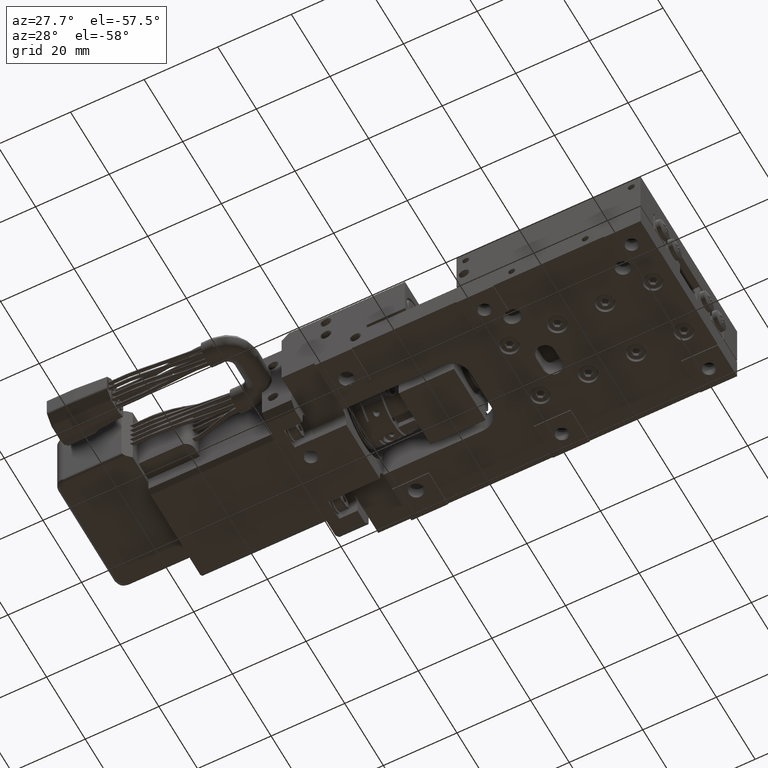
[diagram: clean part render]
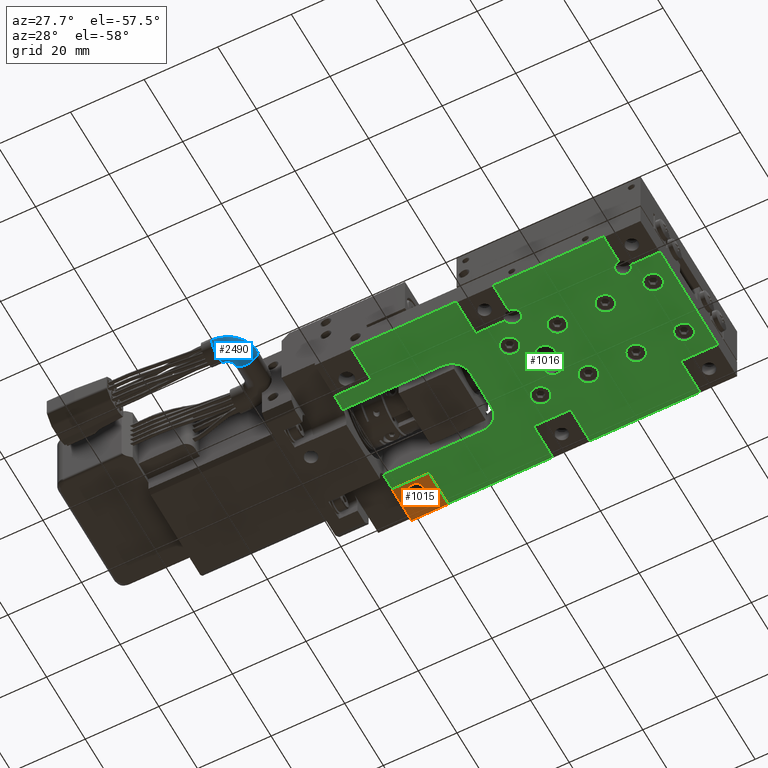
[diagram: same view with three faces highlighted in distinct colors, each labeled with its STEP entity id]
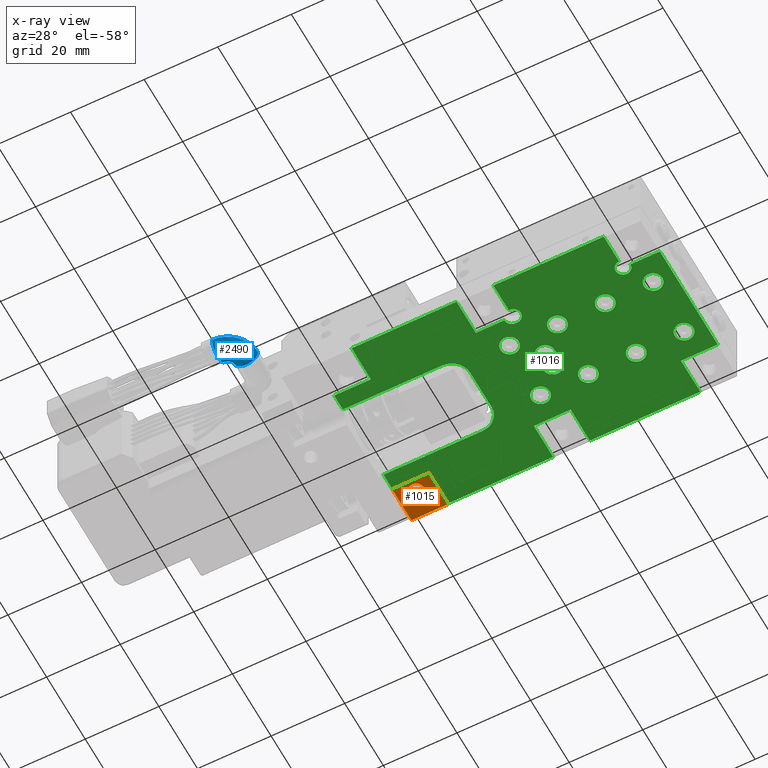
[diagram: x-ray of the same camera — body ghosted, the three highlighted faces saturated]
A machine part, auxiliary view with three faces highlighted in distinct colors.
The next image is the same camera in x-ray (body ghosted, the three faces saturated) — at least one of them is partly hidden behind the body in this view.
Their STEP definitions:

[orange] entity #1015 — the highlighted planar face has unit normal (0, 0, -1).
#1015=ADVANCED_FACE('',(#10198,#10199),#10197,.T.);
#10197=PLANE('',#30189);
#10198=FACE_OUTER_BOUND('',#30190,.T.);
#10199=FACE_BOUND('',#30191,.T.);
#30186=CARTESIAN_POINT('',(-5.25000000000E+001,1.40000000000E+001,-1.72084568817E-015));
#30187=DIRECTION('',(0.00000000000E+000,0.00000000000E+000,-1.00000000000E+000));
#30188=DIRECTION('',(-1.00000000000E+000,0.00000000000E+000,0.00000000000E+000));
#30189=AXIS2_PLACEMENT_3D('',#30186,#30187,#30188);
#30190=EDGE_LOOP('',(#44782,#44783,#44784,#44785));
#30191=EDGE_LOOP('',(#44786,#44787));
#44782=ORIENTED_EDGE('',*,*,#53882,.F.);
#44783=ORIENTED_EDGE('',*,*,#53807,.T.);
#44784=ORIENTED_EDGE('',*,*,#53866,.T.);
#44785=ORIENTED_EDGE('',*,*,#53883,.T.);
#44786=ORIENTED_EDGE('',*,*,#53884,.T.);
#44787=ORIENTED_EDGE('',*,*,#53885,.T.);
#53807=EDGE_CURVE('',#69928,#69921,#69929,.T.);
#53866=EDGE_CURVE('',#69921,#70327,#70334,.T.);
#53882=EDGE_CURVE('',#69928,#70443,#70444,.T.);
#53883=EDGE_CURVE('',#70327,#70443,#70450,.T.);
#53884=EDGE_CURVE('',#70456,#70457,#70458,.T.);
#53885=EDGE_CURVE('',#70457,#70456,#70464,.T.);
#69921=VERTEX_POINT('',#100091);
#69928=VERTEX_POINT('',#100095);
#69929=LINE('',#100096,#100097);
#70327=VERTEX_POINT('',#100330);
#70334=LINE('',#100334,#100335);
#70443=VERTEX_POINT('',#100405);
#70444=LINE('',#100406,#100407);
#70450=LINE('',#100409,#100410);
#70456=VERTEX_POINT('',#100412);
#70457=VERTEX_POINT('',#100413);
#70458=CIRCLE('',#100417,2.00000000000E+000);
#70464=CIRCLE('',#100421,2.00000000000E+000);
#100091=CARTESIAN_POINT('',(-6.35000000000E+001,2.50000000000E+001,-1.72084568817E-015));
#100095=CARTESIAN_POINT('',(-6.35000000000E+001,1.50000000000E+001,-3.63986965568E-012));
#100096=CARTESIAN_POINT('',(-6.35000000000E+001,1.50000000000E+001,-1.72084568817E-015));
#100097=VECTOR('',#100098,1.00000000000E+001);
#100098=DIRECTION('',(0.00000000000E+000,1.00000000000E+000,0.00000000000E+000));
#100330=CARTESIAN_POINT('',(-5.35000000000E+001,2.50000000000E+001,-3.63986965568E-012));
#100334=CARTESIAN_POINT('',(-6.35000000000E+001,2.50000000000E+001,-1.72084568817E-015));
#100335=VECTOR('',#100336,1.00000000000E+001);
#100336=DIRECTION('',(1.00000000000E+000,0.00000000000E+000,0.00000000000E+000));
#100405=CARTESIAN_POINT('',(-5.35000000000E+001,1.50000000000E+001,-3.63986965568E-012));
#100406=CARTESIAN_POINT('',(-6.35000000000E+001,1.50000000000E+001,-3.63986965568E-012));
#100407=VECTOR('',#100408,9.99999999998E+000);
#100408=DIRECTION('',(1.00000000000E+000,0.00000000000E+000,0.00000000000E+000));
#100409=CARTESIAN_POINT('',(-5.35000000000E+001,2.50000000000E+001,-3.63986965568E-012));
#100410=VECTOR('',#100411,9.99999999998E+000);
#100411=DIRECTION('',(0.00000000000E+000,-1.00000000000E+000,0.00000000000E+000));
#100412=CARTESIAN_POINT('',(-5.65000000000E+001,1.80000000000E+001,-5.18430645635E-011));
#100413=CARTESIAN_POINT('',(-6.05000000000E+001,1.80000000000E+001,-5.18430645635E-011));
#100414=CARTESIAN_POINT('',(-5.85000000000E+001,1.80000000000E+001,-5.18430645635E-011));
#100415=DIRECTION('',(0.00000000000E+000,0.00000000000E+000,1.00000000000E+000));
#100416=DIRECTION('',(1.00000000000E+000,-1.22464679915E-016,0.00000000000E+000));
#100417=AXIS2_PLACEMENT_3D('',#100414,#100415,#100416);
#100418=CARTESIAN_POINT('',(-5.85000000000E+001,1.80000000000E+001,-5.18430645635E-011));
#100419=DIRECTION('',(0.00000000000E+000,0.00000000000E+000,1.00000000000E+000));
#100420=DIRECTION('',(1.00000000000E+000,-1.22464679915E-016,0.00000000000E+000));
#100421=AXIS2_PLACEMENT_3D('',#100418,#100419,#100420);

[blue] entity #2490 — the highlighted face is a freeform B-spline surface patch.
#2490=ADVANCED_FACE('',(#25154),#25153,.T.);
#25153=( BOUNDED_SURFACE() B_SPLINE_SURFACE( 2,2,((#41200,#41201,#41202,#41203,#41204),(#41205,#41206,#41207,#41208,#41209),(#41210,#41211,#41212,#41213,#41214),(#41215,#41216,#41217,#41218,#41219),(#41220,#41221,#41222,#41223,#41224)), .UNSPECIFIED.,.F.,.F.,.F.) B_SPLINE_SURFACE_WITH_KNOTS((3,2,3),(3,2,3),(8.88178419700E-016,1.57079632679E+000,3.14159265359E+000),(2.35619449019E+000,3.14159265359E+000,3.92699081699E+000), .UNSPECIFIED. ) GEOMETRIC_REPRESENTATION_ITEM() RATIONAL_B_SPLINE_SURFACE(((8.53553390593E-001,8.53553390593E-001,1.00000000000E+000,8.53553390593E-001,8.53553390593E-001),(6.03553390593E-001,6.03553390593E-001,7.07106781187E-001,6.03553390593E-001,6.03553390593E-001),(8.53553390593E-001,8.53553390593E-001,1.00000000000E+000,8.53553390593E-001,8.53553390593E-001),(6.03553390593E-001,6.03553390593E-001,7.07106781187E-001,6.03553390593E-001,6.03553390593E-001),(8.53553390593E-001,8.53553390593E-001,1.00000000000E+000,8.53553390593E-001,8.53553390593E-001))) REPRESENTATION_ITEM('') SURFACE() );
#25154=FACE_OUTER_BOUND('',#41225,.T.);
#41200=CARTESIAN_POINT('',(-8.50500106338E+001,-3.72499997499E+001,9.99867252912E+000));
#41201=CARTESIAN_POINT('',(-8.16327487442E+001,-3.72500007254E+001,9.99867252912E+000));
#41202=CARTESIAN_POINT('',(-7.92163789992E+001,-3.48336323616E+001,9.99875881646E+000));
#41203=CARTESIAN_POINT('',(-7.68000092542E+001,-3.24172639977E+001,9.99884510379E+000));
#41204=CARTESIAN_POINT('',(-7.68000082787E+001,-2.90000021103E+001,9.99896713251E+000));
#41205=CARTESIAN_POINT('',(-8.50500106338E+001,-3.72498836940E+001,6.74867253120E+000));
#41206=CARTESIAN_POINT('',(-8.16327487442E+001,-3.72498846696E+001,6.74867253120E+000));
#41207=CARTESIAN_POINT('',(-7.92163789992E+001,-3.48335163057E+001,6.74875881853E+000));
#41208=CARTESIAN_POINT('',(-7.68000092542E+001,-3.24171479418E+001,6.74884510587E+000));
#41209=CARTESIAN_POINT('',(-7.68000082786E+001,-2.89998860544E+001,6.74896713458E+000));
#41210=CARTESIAN_POINT('',(-8.50500097060E+001,-3.39998836961E+001,6.74878858708E+000));
#41211=CARTESIAN_POINT('',(-8.29789418941E+001,-3.39998842873E+001,6.74878858708E+000));
#41212=CARTESIAN_POINT('',(-8.15144753820E+001,-3.25354186123E+001,6.74884088243E+000));
#41213=CARTESIAN_POINT('',(-8.00500088699E+001,-3.10709529372E+001,6.74889317779E+000));
#41214=CARTESIAN_POINT('',(-8.00500082786E+001,-2.89998851267E+001,6.74896713458E+000));
#41215=CARTESIAN_POINT('',(-8.50500087782E+001,-3.07498836982E+001,6.74890464296E+000));
#41216=CARTESIAN_POINT('',(-8.43251350440E+001,-3.07498839051E+001,6.74890464296E+000));
#41217=CARTESIAN_POINT('',(-8.38125717648E+001,-3.02373209188E+001,6.74892294633E+000));
#41218=CARTESIAN_POINT('',(-8.33000084856E+001,-2.97247579326E+001,6.74894124970E+000));
#41219=CARTESIAN_POINT('',(-8.33000082786E+001,-2.89998841989E+001,6.74896713458E+000));
#41220=CARTESIAN_POINT('',(-8.50500087782E+001,-3.07499997541E+001,9.99890464088E+000));
#41221=CARTESIAN_POINT('',(-8.43251350441E+001,-3.07499999610E+001,9.99890464088E+000));
#41222=CARTESIAN_POINT('',(-8.38125717648E+001,-3.02374369747E+001,9.99892294426E+000));
#41223=CARTESIAN_POINT('',(-8.33000084856E+001,-2.97248739884E+001,9.99894124763E+000));
#41224=CARTESIAN_POINT('',(-8.33000082787E+001,-2.90000002548E+001,9.99896713251E+000));
#41225=EDGE_LOOP('',(#51871,#51872,#51873,#51874,#51875,#51876));
#51871=ORIENTED_EDGE('',*,*,#57186,.F.);
#51872=ORIENTED_EDGE('',*,*,#57188,.F.);
#51873=ORIENTED_EDGE('',*,*,#57194,.T.);
#51874=ORIENTED_EDGE('',*,*,#57196,.T.);
#51875=ORIENTED_EDGE('',*,*,#57197,.T.);
#51876=ORIENTED_EDGE('',*,*,#57195,.F.);
#57186=EDGE_CURVE('',#92199,#92200,#92201,.T.);
#57188=EDGE_CURVE('',#92207,#92199,#92214,.T.);
#57194=EDGE_CURVE('',#92207,#92249,#92256,.T.);
#57195=EDGE_CURVE('',#92200,#92241,#92262,.T.);
#57196=EDGE_CURVE('',#92249,#92268,#92269,.T.);
#57197=EDGE_CURVE('',#92268,#92241,#92275,.T.);
#92199=VERTEX_POINT('',#114449);
#92200=VERTEX_POINT('',#114450);
#92201=CIRCLE('',#114454,3.25000000000E+000);
#92207=VERTEX_POINT('',#114455);
#92214=CIRCLE('',#114463,3.25000000000E+000);
#92241=VERTEX_POINT('',#114479);
#92249=VERTEX_POINT('',#114485);
#92256=(BOUNDED_CURVE() B_SPLINE_CURVE(2,(#114490,#114491,#114492,#114493,#114494),.UNSPECIFIED.,.F.,.F.) B_SPLINE_CURVE_WITH_KNOTS((3,2,3),(2.35619447459E+000,3.14159265359E+000,3.92699083259E+000),.UNSPECIFIED.) CURVE() GEOMETRIC_REPRESENTATION_ITEM() RATIONAL_B_SPLINE_CURVE((8.53553390593E-001,8.53553387684E-001,1.00000000000E+000,8.53553387684E-001,8.53553390593E-001)) REPRESENTATION_ITEM('') );
#92262=(BOUNDED_CURVE() B_SPLINE_CURVE(2,(#114495,#114496,#114497,#114498,#114499),.UNSPECIFIED.,.F.,.F.) B_SPLINE_CURVE_WITH_KNOTS((3,2,3),(2.35619449019E+000,3.14159265359E+000,3.92699081699E+000),.UNSPECIFIED.) CURVE() GEOMETRIC_REPRESENTATION_ITEM() RATIONAL_B_SPLINE_CURVE((8.53553390593E-001,8.53553390593E-001,1.00000000000E+000,8.53553390593E-001,8.53553390593E-001)) REPRESENTATION_ITEM('') );
#92268=VERTEX_POINT('',#114500);
#92269=CIRCLE('',#114504,3.25000000000E+000);
#92275=CIRCLE('',#114508,3.25000000000E+000);
#114449=CARTESIAN_POINT('',(-8.50500097060E+001,-3.39998836961E+001,6.74878858708E+000));
#114450=CARTESIAN_POINT('',(-8.50500106338E+001,-3.72499997499E+001,9.99867261943E+000));
#114451=CARTESIAN_POINT('',(-8.50500097060E+001,-3.39999997520E+001,9.99878858500E+000));
#114452=DIRECTION('',(-1.00000000000E+000,2.85470934326E-007,0.00000000000E+000));
#114453=DIRECTION('',(1.01940247477E-011,3.57095014656E-005,-9.99999999362E-001));
#114454=AXIS2_PLACEMENT_3D('',#114451,#114452,#114453);
#114455=CARTESIAN_POINT('',(-8.50500087782E+001,-3.07499997541E+001,9.99890462904E+000));
#114460=CARTESIAN_POINT('',(-8.50500097060E+001,-3.39999997520E+001,9.99878858500E+000));
#114461=DIRECTION('',(-1.00000000000E+000,2.85470934326E-007,0.00000000000E+000));
#114462=DIRECTION('',(1.01940247477E-011,3.57095014656E-005,-9.99999999362E-001));
#114463=AXIS2_PLACEMENT_3D('',#114460,#114461,#114462);
#114479=CARTESIAN_POINT('',(-7.68000082787E+001,-2.90000021103E+001,9.99896765695E+000));
#114485=CARTESIAN_POINT('',(-8.33000082787E+001,-2.90000002548E+001,9.99896712067E+000));
#114490=CARTESIAN_POINT('',(-8.50500088070E+001,-3.07499997541E+001,9.99890464088E+000));
#114491=CARTESIAN_POINT('',(-8.43251350560E+001,-3.07499999729E+001,9.99890464088E+000));
#114492=CARTESIAN_POINT('',(-8.38125717648E+001,-3.02374369747E+001,9.99892294426E+000));
#114493=CARTESIAN_POINT('',(-8.33000084737E+001,-2.97248739765E+001,9.99894124763E+000));
#114494=CARTESIAN_POINT('',(-8.33000082787E+001,-2.90000002259E+001,9.99896713251E+000));
#114495=CARTESIAN_POINT('',(-8.50500106338E+001,-3.72499997499E+001,9.99867252912E+000));
#114496=CARTESIAN_POINT('',(-8.16327487442E+001,-3.72500007254E+001,9.99867252912E+000));
#114497=CARTESIAN_POINT('',(-7.92163789992E+001,-3.48336323616E+001,9.99875881646E+000));
#114498=CARTESIAN_POINT('',(-7.68000092542E+001,-3.24172639977E+001,9.99884510379E+000));
#114499=CARTESIAN_POINT('',(-7.68000082787E+001,-2.90000021103E+001,9.99896713251E+000));
#114500=CARTESIAN_POINT('',(-8.00500082786E+001,-2.89998851267E+001,6.74896713458E+000));
#114501=CARTESIAN_POINT('',(-8.00500082787E+001,-2.90000011825E+001,9.99896713251E+000));
#114502=DIRECTION('',(-2.85470934205E-007,-9.99999999362E-001,-3.57095014655E-005));
#114503=DIRECTION('',(1.01939022830E-011,3.57095014655E-005,-9.99999999362E-001));
#114504=AXIS2_PLACEMENT_3D('',#114501,#114502,#114503);
#114505=CARTESIAN_POINT('',(-8.00500082787E+001,-2.90000011825E+001,9.99896713251E+000));
#114506=DIRECTION('',(-2.85470934205E-007,-9.99999999362E-001,-3.57095014655E-005));
#114507=DIRECTION('',(1.01939022830E-011,3.57095014655E-005,-9.99999999362E-001));
#114508=AXIS2_PLACEMENT_3D('',#114505,#114506,#114507);

[green] entity #1016 — the highlighted planar face has unit normal (0, 0, -1).
#1016=ADVANCED_FACE('',(#10209,#10210,#10211,#10212,#10213,#10214,#10215,#10216,#10217,#10218),#10208,.T.);
#10208=PLANE('',#30195);
#10209=FACE_OUTER_BOUND('',#30196,.T.);
#10210=FACE_BOUND('',#30197,.T.);
#10211=FACE_BOUND('',#30198,.T.);
#10212=FACE_BOUND('',#30199,.T.);
#10213=FACE_BOUND('',#30200,.T.);
#10214=FACE_BOUND('',#30201,.T.);
#10215=FACE_BOUND('',#30202,.T.);
#10216=FACE_BOUND('',#30203,.T.);
#10217=FACE_BOUND('',#30204,.T.);
#10218=FACE_BOUND('',#30205,.T.);
#30192=CARTESIAN_POINT('',(3.38500000000E+001,-3.00000000012E+001,3.00000000000E-001));
#30193=DIRECTION('',(0.00000000000E+000,0.00000000000E+000,-1.00000000000E+000));
#30194=DIRECTION('',(-1.00000000000E+000,0.00000000000E+000,0.00000000000E+000));
#30195=AXIS2_PLACEMENT_3D('',#30192,#30193,#30194);
#30196=EDGE_LOOP('',(#44788,#44789,#44790,#44791,#44792,#44793,#44794,#44795,#44796,#44797,#44798,#44799,#44800,#44801,#44802,#44803,#44804,#44805,#44806,#44807,#44808,#44809,#44810,#44811,#44812,#44813,#44814,#44815,#44816,#44817,#44818,#44819));
#30197=EDGE_LOOP('',(#44820,#44821));
#30198=EDGE_LOOP('',(#44822,#44823));
#30199=EDGE_LOOP('',(#44824,#44825));
#30200=EDGE_LOOP('',(#44826,#44827));
#30201=EDGE_LOOP('',(#44828,#44829));
#30202=EDGE_LOOP('',(#44830,#44831));
#30203=EDGE_LOOP('',(#44832,#44833));
#30204=EDGE_LOOP('',(#44834,#44835));
#30205=EDGE_LOOP('',(#44836,#44837,#44838,#44839));
#44788=ORIENTED_EDGE('',*,*,#53886,.F.);
#44789=ORIENTED_EDGE('',*,*,#53887,.F.);
#44790=ORIENTED_EDGE('',*,*,#53888,.F.);
#44791=ORIENTED_EDGE('',*,*,#53889,.F.);
#44792=ORIENTED_EDGE('',*,*,#53725,.F.);
#44793=ORIENTED_EDGE('',*,*,#53722,.T.);
#44794=ORIENTED_EDGE('',*,*,#53890,.F.);
#44795=ORIENTED_EDGE('',*,*,#53716,.F.);
#44796=ORIENTED_EDGE('',*,*,#53714,.F.);
#44797=ORIENTED_EDGE('',*,*,#53891,.T.);
#44798=ORIENTED_EDGE('',*,*,#53781,.T.);
#44799=ORIENTED_EDGE('',*,*,#53787,.T.);
#44800=ORIENTED_EDGE('',*,*,#53794,.T.);
#44801=ORIENTED_EDGE('',*,*,#53797,.T.);
#44802=ORIENTED_EDGE('',*,*,#53802,.T.);
#44803=ORIENTED_EDGE('',*,*,#53809,.T.);
#44804=ORIENTED_EDGE('',*,*,#53892,.T.);
#44805=ORIENTED_EDGE('',*,*,#53893,.F.);
#44806=ORIENTED_EDGE('',*,*,#53864,.F.);
#44807=ORIENTED_EDGE('',*,*,#53894,.T.);
#44808=ORIENTED_EDGE('',*,*,#53895,.T.);
#44809=ORIENTED_EDGE('',*,*,#53896,.F.);
#44810=ORIENTED_EDGE('',*,*,#53860,.F.);
#44811=ORIENTED_EDGE('',*,*,#53897,.T.);
#44812=ORIENTED_EDGE('',*,*,#53736,.T.);
#44813=ORIENTED_EDGE('',*,*,#53838,.F.);
#44814=ORIENTED_EDGE('',*,*,#53732,.F.);
#44815=ORIENTED_EDGE('',*,*,#53898,.F.);
#44816=ORIENTED_EDGE('',*,*,#53899,.F.);
#44817=ORIENTED_EDGE('',*,*,#53900,.T.);
#44818=ORIENTED_EDGE('',*,*,#53901,.F.);
#44819=ORIENTED_EDGE('',*,*,#53727,.F.);
#44820=ORIENTED_EDGE('',*,*,#53902,.T.);
#44821=ORIENTED_EDGE('',*,*,#53903,.T.);
#44822=ORIENTED_EDGE('',*,*,#53904,.T.);
#44823=ORIENTED_EDGE('',*,*,#53905,.T.);
#44824=ORIENTED_EDGE('',*,*,#53906,.T.);
#44825=ORIENTED_EDGE('',*,*,#53907,.T.);
#44826=ORIENTED_EDGE('',*,*,#53908,.T.);
#44827=ORIENTED_EDGE('',*,*,#53909,.T.);
#44828=ORIENTED_EDGE('',*,*,#53910,.T.);
#44829=ORIENTED_EDGE('',*,*,#53911,.T.);
#44830=ORIENTED_EDGE('',*,*,#53912,.T.);
#44831=ORIENTED_EDGE('',*,*,#53913,.T.);
#44832=ORIENTED_EDGE('',*,*,#53914,.T.);
#44833=ORIENTED_EDGE('',*,*,#53915,.T.);
#44834=ORIENTED_EDGE('',*,*,#53916,.T.);
#44835=ORIENTED_EDGE('',*,*,#53917,.T.);
#44836=ORIENTED_EDGE('',*,*,#53918,.T.);
#44837=ORIENTED_EDGE('',*,*,#53919,.T.);
#44838=ORIENTED_EDGE('',*,*,#53920,.T.);
#44839=ORIENTED_EDGE('',*,*,#53921,.T.);
#53714=EDGE_CURVE('',#69279,#69286,#69287,.T.);
#53716=EDGE_CURVE('',#69286,#69299,#69300,.T.);
#53722=EDGE_CURVE('',#69320,#69334,#69341,.T.);
#53725=EDGE_CURVE('',#69320,#69348,#69361,.T.);
#53727=EDGE_CURVE('',#69367,#69375,#69376,.T.);
#53732=EDGE_CURVE('',#69403,#69410,#69411,.T.);
#53736=EDGE_CURVE('',#69438,#69431,#69439,.T.);
#53781=EDGE_CURVE('',#69752,#69745,#69753,.T.);
#53787=EDGE_CURVE('',#69745,#69786,#69793,.T.);
#53794=EDGE_CURVE('',#69786,#69834,#69841,.T.);
#53797=EDGE_CURVE('',#69834,#69854,#69861,.T.);
#53802=EDGE_CURVE('',#69854,#69888,#69895,.T.);
#53809=EDGE_CURVE('',#69888,#69935,#69942,.T.);
#53838=EDGE_CURVE('',#69410,#69431,#70144,.T.);
#53860=EDGE_CURVE('',#70285,#70292,#70293,.T.);
#53864=EDGE_CURVE('',#70313,#70320,#70321,.T.);
#53886=EDGE_CURVE('',#70470,#69367,#70471,.T.);
#53887=EDGE_CURVE('',#70477,#70470,#70478,.T.);
#53888=EDGE_CURVE('',#70484,#70477,#70485,.T.);
#53889=EDGE_CURVE('',#69348,#70484,#70491,.T.);
#53890=EDGE_CURVE('',#69299,#69334,#70497,.T.);
#53891=EDGE_CURVE('',#69279,#69752,#70503,.T.);
#53892=EDGE_CURVE('',#69935,#70509,#70510,.T.);
#53893=EDGE_CURVE('',#70320,#70509,#70516,.T.);
#53894=EDGE_CURVE('',#70313,#70522,#70523,.T.);
#53895=EDGE_CURVE('',#70522,#70529,#70530,.T.);
#53896=EDGE_CURVE('',#70292,#70529,#70536,.T.);
#53897=EDGE_CURVE('',#70285,#69438,#70542,.T.);
#53898=EDGE_CURVE('',#70548,#69403,#70549,.T.);
#53899=EDGE_CURVE('',#70555,#70548,#70556,.T.);
#53900=EDGE_CURVE('',#70555,#70562,#70563,.T.);
#53901=EDGE_CURVE('',#69375,#70562,#70569,.T.);
#53902=EDGE_CURVE('',#70575,#70576,#70577,.T.);
#53903=EDGE_CURVE('',#70576,#70575,#70583,.T.);
#53904=EDGE_CURVE('',#70589,#70590,#70591,.T.);
#53905=EDGE_CURVE('',#70590,#70589,#70597,.T.);
#53906=EDGE_CURVE('',#70603,#70604,#70605,.T.);
#53907=EDGE_CURVE('',#70604,#70603,#70611,.T.);
#53908=EDGE_CURVE('',#70617,#70618,#70619,.T.);
#53909=EDGE_CURVE('',#70618,#70617,#70625,.T.);
#53910=EDGE_CURVE('',#70631,#70632,#70633,.T.);
#53911=EDGE_CURVE('',#70632,#70631,#70639,.T.);
#53912=EDGE_CURVE('',#70645,#70646,#70647,.T.);
#53913=EDGE_CURVE('',#70646,#70645,#70653,.T.);
#53914=EDGE_CURVE('',#70659,#70660,#70661,.T.);
#53915=EDGE_CURVE('',#70660,#70659,#70667,.T.);
#53916=EDGE_CURVE('',#70673,#70674,#70675,.T.);
#53917=EDGE_CURVE('',#70674,#70673,#70681,.T.);
#53918=EDGE_CURVE('',#70687,#70688,#70689,.T.);
#53919=EDGE_CURVE('',#70688,#70695,#70696,.T.);
#53920=EDGE_CURVE('',#70695,#70702,#70703,.T.);
#53921=EDGE_CURVE('',#70702,#70687,#70709,.T.);
#69279=VERTEX_POINT('',#99696);
#69286=VERTEX_POINT('',#99700);
#69287=LINE('',#99701,#99702);
#69299=VERTEX_POINT('',#99707);
#69300=LINE('',#99708,#99709);
#69320=VERTEX_POINT('',#99719);
#69334=VERTEX_POINT('',#99727);
#69341=LINE('',#99731,#99732);
#69348=VERTEX_POINT('',#99735);
#69361=LINE('',#99742,#99743);
#69367=VERTEX_POINT('',#99745);
#69375=VERTEX_POINT('',#99750);
#69376=LINE('',#99751,#99752);
#69403=VERTEX_POINT('',#99766);
#69410=VERTEX_POINT('',#99770);
#69411=LINE('',#99771,#99772);
#69431=VERTEX_POINT('',#99782);
#69438=VERTEX_POINT('',#99786);
#69439=LINE('',#99787,#99788);
#69745=VERTEX_POINT('',#99988);
#69752=VERTEX_POINT('',#99992);
#69753=LINE('',#99993,#99994);
#69786=VERTEX_POINT('',#100012);
#69793=CIRCLE('',#100019,5.00000000000E+000);
#69834=VERTEX_POINT('',#100040);
#69841=LINE('',#100044,#100045);
#69854=VERTEX_POINT('',#100052);
#69861=CIRCLE('',#100059,5.00000000000E+000);
#69888=VERTEX_POINT('',#100072);
#69895=LINE('',#100076,#100077);
#69935=VERTEX_POINT('',#100099);
#69942=LINE('',#100103,#100104);
#70144=LINE('',#100222,#100223);
#70285=VERTEX_POINT('',#100306);
#70292=VERTEX_POINT('',#100310);
#70293=LINE('',#100311,#100312);
#70313=VERTEX_POINT('',#100322);
#70320=VERTEX_POINT('',#100326);
#70321=LINE('',#100327,#100328);
#70470=VERTEX_POINT('',#100422);
#70471=LINE('',#100423,#100424);
#70477=VERTEX_POINT('',#100426);
#70478=CIRCLE('',#100430,2.00000000000E+000);
#70484=VERTEX_POINT('',#100431);
#70485=LINE('',#100432,#100433);
#70491=CIRCLE('',#100438,2.00000000000E+000);
#70497=LINE('',#100439,#100440);
#70503=LINE('',#100442,#100443);
#70509=VERTEX_POINT('',#100445);
#70510=LINE('',#100446,#100447);
#70516=LINE('',#100449,#100450);
#70522=VERTEX_POINT('',#100452);
#70523=LINE('',#100453,#100454);
#70529=VERTEX_POINT('',#100456);
#70530=LINE('',#100457,#100458);
#70536=LINE('',#100460,#100461);
#70542=LINE('',#100463,#100464);
#70548=VERTEX_POINT('',#100466);
#70549=CIRCLE('',#100470,2.00000000000E+000);
#70555=VERTEX_POINT('',#100471);
#70556=CIRCLE('',#100475,2.00000000000E+000);
#70562=VERTEX_POINT('',#100476);
#70563=LINE('',#100477,#100478);
#70569=LINE('',#100480,#100481);
#70575=VERTEX_POINT('',#100483);
#70576=VERTEX_POINT('',#100484);
#70577=CIRCLE('',#100488,2.50000000000E+000);
#70583=CIRCLE('',#100492,2.50000000000E+000);
#70589=VERTEX_POINT('',#100493);
#70590=VERTEX_POINT('',#100494);
#70591=CIRCLE('',#100498,2.50000000000E+000);
#70597=CIRCLE('',#100502,2.50000000000E+000);
#70603=VERTEX_POINT('',#100503);
#70604=VERTEX_POINT('',#100504);
#70605=CIRCLE('',#100508,2.50000000000E+000);
#70611=CIRCLE('',#100512,2.50000000000E+000);
#70617=VERTEX_POINT('',#100513);
#70618=VERTEX_POINT('',#100514);
#70619=CIRCLE('',#100518,2.50000000000E+000);
#70625=CIRCLE('',#100522,2.50000000000E+000);
#70631=VERTEX_POINT('',#100523);
#70632=VERTEX_POINT('',#100524);
#70633=CIRCLE('',#100528,2.50000000000E+000);
#70639=CIRCLE('',#100532,2.50000000000E+000);
#70645=VERTEX_POINT('',#100533);
#70646=VERTEX_POINT('',#100534);
#70647=CIRCLE('',#100538,2.50000000000E+000);
#70653=CIRCLE('',#100542,2.50000000000E+000);
#70659=VERTEX_POINT('',#100543);
#70660=VERTEX_POINT('',#100544);
#70661=CIRCLE('',#100548,2.50000000000E+000);
#70667=CIRCLE('',#100552,2.50000000000E+000);
#70673=VERTEX_POINT('',#100553);
#70674=VERTEX_POINT('',#100554);
#70675=CIRCLE('',#100558,2.50000000000E+000);
#70681=CIRCLE('',#100562,2.50000000000E+000);
#70687=VERTEX_POINT('',#100563);
#70688=VERTEX_POINT('',#100564);
#70689=LINE('',#100565,#100566);
#70695=VERTEX_POINT('',#100568);
#70696=CIRCLE('',#100572,2.50000000000E+000);
#70702=VERTEX_POINT('',#100573);
#70703=LINE('',#100574,#100575);
#70709=CIRCLE('',#100580,2.50000000000E+000);
#99696=CARTESIAN_POINT('',(-6.35000000000E+001,-1.50000000000E+001,3.00000000000E-001));
#99700=CARTESIAN_POINT('',(-5.35000000000E+001,-1.50000000000E+001,3.00000000000E-001));
#99701=CARTESIAN_POINT('',(-6.35000000000E+001,-1.50000000000E+001,3.00000000000E-001));
#99702=VECTOR('',#99703,1.00000000000E+001);
#99703=DIRECTION('',(1.00000000000E+000,0.00000000000E+000,0.00000000000E+000));
#99707=CARTESIAN_POINT('',(-5.35000000119E+001,-2.50000000000E+001,3.00000000000E-001));
#99708=CARTESIAN_POINT('',(-5.35000000000E+001,-1.50000000000E+001,3.00000000000E-001));
#99709=VECTOR('',#99710,1.00000000000E+001);
#99710=DIRECTION('',(0.00000000000E+000,-1.00000000000E+000,0.00000000000E+000));
#99719=CARTESIAN_POINT('',(-2.50000000000E+001,-1.50000000000E+001,3.00000000000E-001));
#99727=CARTESIAN_POINT('',(-2.50000000000E+001,-2.50000000000E+001,3.00000000000E-001));
#99731=CARTESIAN_POINT('',(-2.50000000000E+001,-1.50000000000E+001,3.00000000000E-001));
#99732=VECTOR('',#99733,1.00000000000E+001);
#99733=DIRECTION('',(0.00000000000E+000,-1.00000000000E+000,0.00000000000E+000));
#99735=CARTESIAN_POINT('',(-1.72500000000E+001,-1.50000000000E+001,3.00000000000E-001));
#99742=CARTESIAN_POINT('',(-2.50000000000E+001,-1.50000000000E+001,3.00000000000E-001));
#99743=VECTOR('',#99744,7.75000000000E+000);
#99744=DIRECTION('',(1.00000000000E+000,0.00000000000E+000,0.00000000000E+000));
#99745=CARTESIAN_POINT('',(-1.50000000119E+001,-1.70000000000E+001,3.00000000000E-001));
#99750=CARTESIAN_POINT('',(-1.50000000119E+001,-2.50000000000E+001,3.00000000000E-001));
#99751=CARTESIAN_POINT('',(-1.50000000000E+001,-1.70000000000E+001,3.00000000000E-001));
#99752=VECTOR('',#99753,8.00000000000E+000);
#99753=DIRECTION('',(0.00000000000E+000,-1.00000000000E+000,0.00000000000E+000));
#99766=CARTESIAN_POINT('',(1.70000000000E+001,-1.50000000000E+001,3.00000000000E-001));
#99770=CARTESIAN_POINT('',(2.50000000000E+001,-1.50000000120E+001,3.00000000000E-001));
#99771=CARTESIAN_POINT('',(1.70000000000E+001,-1.50000000000E+001,3.00000000000E-001));
#99772=VECTOR('',#99773,8.00000000000E+000);
#99773=DIRECTION('',(1.00000000000E+000,0.00000000000E+000,0.00000000000E+000));
#99782=CARTESIAN_POINT('',(2.50000000000E+001,1.50000000119E+001,3.00000000000E-001));
#99786=CARTESIAN_POINT('',(1.50000000000E+001,1.50000000000E+001,3.00000000000E-001));
#99787=CARTESIAN_POINT('',(1.50000000000E+001,1.50000000000E+001,3.00000000000E-001));
#99788=VECTOR('',#99789,1.00000000000E+001);
#99789=DIRECTION('',(1.00000000000E+000,0.00000000000E+000,0.00000000000E+000));
#99988=CARTESIAN_POINT('',(-3.65000000000E+001,-1.05000000000E+001,3.00000000000E-001));
#99992=CARTESIAN_POINT('',(-6.35000000000E+001,-1.05000000000E+001,3.00000000000E-001));
#99993=CARTESIAN_POINT('',(-6.35000000000E+001,-1.05000000000E+001,3.00000000000E-001));
#99994=VECTOR('',#99995,2.70000000000E+001);
#99995=DIRECTION('',(1.00000000000E+000,0.00000000000E+000,0.00000000000E+000));
#100012=CARTESIAN_POINT('',(-3.15000000000E+001,-5.50000000000E+000,3.00000000000E-001));
#100016=CARTESIAN_POINT('',(-3.65000000000E+001,-5.50000000000E+000,3.00000000000E-001));
#100017=DIRECTION('',(0.00000000000E+000,-0.00000000000E+000,1.00000000000E+000));
#100018=DIRECTION('',(1.00000000000E+000,-0.00000000000E+000,-0.00000000000E+000));
#100019=AXIS2_PLACEMENT_3D('',#100016,#100017,#100018);
#100040=CARTESIAN_POINT('',(-3.15000000000E+001,5.50000000000E+000,3.00000000000E-001));
#100044=CARTESIAN_POINT('',(-3.15000000000E+001,-5.50000000000E+000,3.00000000000E-001));
#100045=VECTOR('',#100046,1.10000000000E+001);
#100046=DIRECTION('',(0.00000000000E+000,1.00000000000E+000,0.00000000000E+000));
#100052=CARTESIAN_POINT('',(-3.65000000000E+001,1.05000000000E+001,3.00000000000E-001));
#100056=CARTESIAN_POINT('',(-3.65000000000E+001,5.50000000000E+000,3.00000000000E-001));
#100057=DIRECTION('',(0.00000000000E+000,-0.00000000000E+000,1.00000000000E+000));
#100058=DIRECTION('',(1.00000000000E+000,-0.00000000000E+000,-0.00000000000E+000));
#100059=AXIS2_PLACEMENT_3D('',#100056,#100057,#100058);
#100072=CARTESIAN_POINT('',(-6.35000000000E+001,1.05000000000E+001,3.00000000000E-001));
#100076=CARTESIAN_POINT('',(-3.65000000000E+001,1.05000000000E+001,3.00000000000E-001));
#100077=VECTOR('',#100078,2.70000000000E+001);
#100078=DIRECTION('',(-1.00000000000E+000,0.00000000000E+000,0.00000000000E+000));
#100099=CARTESIAN_POINT('',(-6.35000000000E+001,1.50000000000E+001,3.00000000000E-001));
#100103=CARTESIAN_POINT('',(-6.35000000000E+001,1.05000000000E+001,3.00000000000E-001));
#100104=VECTOR('',#100105,4.50000000000E+000);
#100105=DIRECTION('',(0.00000000000E+000,1.00000000000E+000,0.00000000000E+000));
#100222=CARTESIAN_POINT('',(2.50000000000E+001,-1.50000000120E+001,3.00000000000E-001));
#100223=VECTOR('',#100224,3.00000000239E+001);
#100224=DIRECTION('',(0.00000000000E+000,1.00000000000E+000,0.00000000000E+000));
#100306=CARTESIAN_POINT('',(1.50000000119E+001,2.50000000119E+001,3.00000000000E-001));
#100310=CARTESIAN_POINT('',(-1.50000000000E+001,2.50000000000E+001,3.00000000000E-001));
#100311=CARTESIAN_POINT('',(1.50000000119E+001,2.50000000000E+001,3.00000000000E-001));
#100312=VECTOR('',#100313,3.00000000119E+001);
#100313=DIRECTION('',(-1.00000000000E+000,0.00000000000E+000,0.00000000000E+000));
#100322=CARTESIAN_POINT('',(-2.50000000000E+001,2.50000000000E+001,3.00000000000E-001));
#100326=CARTESIAN_POINT('',(-5.35000000000E+001,2.50000000000E+001,3.00000000000E-001));
#100327=CARTESIAN_POINT('',(-2.50000000000E+001,2.50000000000E+001,3.00000000000E-001));
#100328=VECTOR('',#100329,2.85000000000E+001);
#100329=DIRECTION('',(-1.00000000000E+000,0.00000000000E+000,0.00000000000E+000));
#100422=CARTESIAN_POINT('',(-1.47499999991E+001,-1.70000000000E+001,3.00000000000E-001));
#100423=CARTESIAN_POINT('',(-1.47499999991E+001,-1.70000000000E+001,3.00000000000E-001));
#100424=VECTOR('',#100425,2.50000012841E-001);
#100425=DIRECTION('',(-1.00000000000E+000,0.00000000000E+000,0.00000000000E+000));
#100426=CARTESIAN_POINT('',(-1.47500000009E+001,-1.30000000000E+001,3.00000000000E-001));
#100427=CARTESIAN_POINT('',(-1.47500000000E+001,-1.50000000000E+001,3.00000000000E-001));
#100428=DIRECTION('',(0.00000000000E+000,0.00000000000E+000,-1.00000000000E+000));
#100429=DIRECTION('',(-4.47100318390E-010,1.00000000000E+000,0.00000000000E+000));
#100430=AXIS2_PLACEMENT_3D('',#100427,#100428,#100429);
#100431=CARTESIAN_POINT('',(-1.52500000000E+001,-1.30000000000E+001,3.00000000000E-001));
#100432=CARTESIAN_POINT('',(-1.52500000000E+001,-1.30000000000E+001,3.00000000000E-001));
#100433=VECTOR('',#100434,4.99999999106E-001);
#100434=DIRECTION('',(1.00000000000E+000,0.00000000000E+000,0.00000000000E+000));
#100435=CARTESIAN_POINT('',(-1.52500000000E+001,-1.50000000000E+001,3.00000000000E-001));
#100436=DIRECTION('',(0.00000000000E+000,0.00000000000E+000,-1.00000000000E+000));
#100437=DIRECTION('',(1.00000000000E+000,-0.00000000000E+000,-0.00000000000E+000));
#100438=AXIS2_PLACEMENT_3D('',#100435,#100436,#100437);
#100439=CARTESIAN_POINT('',(-5.35000000119E+001,-2.50000000000E+001,3.00000000000E-001));
#100440=VECTOR('',#100441,2.85000000119E+001);
#100441=DIRECTION('',(1.00000000000E+000,0.00000000000E+000,0.00000000000E+000));
#100442=CARTESIAN_POINT('',(-6.35000000000E+001,-1.50000000000E+001,3.00000000000E-001));
#100443=VECTOR('',#100444,4.50000000000E+000);
#100444=DIRECTION('',(0.00000000000E+000,1.00000000000E+000,0.00000000000E+000));
#100445=CARTESIAN_POINT('',(-5.35000000000E+001,1.50000000119E+001,3.00000000000E-001));
#100446=CARTESIAN_POINT('',(-6.35000000000E+001,1.50000000000E+001,3.00000000000E-001));
#100447=VECTOR('',#100448,1.00000000000E+001);
#100448=DIRECTION('',(1.00000000000E+000,0.00000000000E+000,0.00000000000E+000));
#100449=CARTESIAN_POINT('',(-5.35000000000E+001,2.50000000000E+001,3.00000000000E-001));
#100450=VECTOR('',#100451,9.99999998806E+000);
#100451=DIRECTION('',(0.00000000000E+000,-1.00000000000E+000,0.00000000000E+000));
#100452=CARTESIAN_POINT('',(-2.50000000000E+001,1.50000000000E+001,3.00000000000E-001));
#100453=CARTESIAN_POINT('',(-2.50000000000E+001,2.50000000000E+001,3.00000000000E-001));
#100454=VECTOR('',#100455,1.00000000000E+001);
#100455=DIRECTION('',(0.00000000000E+000,-1.00000000000E+000,0.00000000000E+000));
#100456=CARTESIAN_POINT('',(-1.50000000000E+001,1.50000000119E+001,3.00000000000E-001));
#100457=CARTESIAN_POINT('',(-2.50000000000E+001,1.50000000000E+001,3.00000000000E-001));
#100458=VECTOR('',#100459,1.00000000000E+001);
#100459=DIRECTION('',(1.00000000000E+000,0.00000000000E+000,0.00000000000E+000));
#100460=CARTESIAN_POINT('',(-1.50000000000E+001,2.50000000000E+001,3.00000000000E-001));
#100461=VECTOR('',#100462,9.99999998805E+000);
#100462=DIRECTION('',(0.00000000000E+000,-1.00000000000E+000,0.00000000000E+000));
#100463=CARTESIAN_POINT('',(1.50000000000E+001,2.50000000119E+001,3.00000000000E-001));
#100464=VECTOR('',#100465,1.00000000119E+001);
#100465=DIRECTION('',(0.00000000000E+000,-1.00000000000E+000,0.00000000000E+000));
#100466=CARTESIAN_POINT('',(1.49999999917E+001,-1.30000000119E+001,3.00000000000E-001));
#100467=CARTESIAN_POINT('',(1.50000000000E+001,-1.50000000119E+001,3.00000000000E-001));
#100468=DIRECTION('',(0.00000000000E+000,0.00000000000E+000,-1.00000000000E+000));
#100469=DIRECTION('',(1.00000000000E+000,-0.00000000000E+000,-0.00000000000E+000));
#100470=AXIS2_PLACEMENT_3D('',#100467,#100468,#100469);
#100471=CARTESIAN_POINT('',(1.50000000000E+001,-1.70000000119E+001,3.00000000000E-001));
#100472=CARTESIAN_POINT('',(1.50000000000E+001,-1.50000000119E+001,3.00000000000E-001));
#100473=DIRECTION('',(0.00000000000E+000,0.00000000000E+000,-1.00000000000E+000));
#100474=DIRECTION('',(1.00000000000E+000,-0.00000000000E+000,-0.00000000000E+000));
#100475=AXIS2_PLACEMENT_3D('',#100472,#100473,#100474);
#100476=CARTESIAN_POINT('',(1.50000000000E+001,-2.50000000000E+001,3.00000000000E-001));
#100477=CARTESIAN_POINT('',(1.50000000000E+001,-1.70000000119E+001,3.00000000000E-001));
#100478=VECTOR('',#100479,7.99999998808E+000);
#100479=DIRECTION('',(0.00000000000E+000,-1.00000000000E+000,0.00000000000E+000));
#100480=CARTESIAN_POINT('',(-1.50000000119E+001,-2.50000000000E+001,3.00000000000E-001));
#100481=VECTOR('',#100482,3.00000000119E+001);
#100482=DIRECTION('',(1.00000000000E+000,0.00000000000E+000,0.00000000000E+000));
#100483=CARTESIAN_POINT('',(-4.00000000000E+000,-8.00000000000E+000,3.00000000000E-001));
#100484=CARTESIAN_POINT('',(-9.00000000000E+000,-8.00000000000E+000,3.00000000000E-001));
#100485=CARTESIAN_POINT('',(-6.50000000000E+000,-8.00000000000E+000,3.00000000000E-001));
#100486=DIRECTION('',(0.00000000000E+000,0.00000000000E+000,1.00000000000E+000));
#100487=DIRECTION('',(1.00000000000E+000,-1.22464679915E-016,0.00000000000E+000));
#100488=AXIS2_PLACEMENT_3D('',#100485,#100486,#100487);
#100489=CARTESIAN_POINT('',(-6.50000000000E+000,-8.00000000000E+000,3.00000000000E-001));
#100490=DIRECTION('',(0.00000000000E+000,0.00000000000E+000,1.00000000000E+000));
#100491=DIRECTION('',(1.00000000000E+000,-1.22464679915E-016,0.00000000000E+000));
#100492=AXIS2_PLACEMENT_3D('',#100489,#100490,#100491);
#100493=CARTESIAN_POINT('',(9.00000000000E+000,-8.00000000000E+000,3.00000000000E-001));
#100494=CARTESIAN_POINT('',(4.00000000000E+000,-8.00000000000E+000,3.00000000000E-001));
#100495=CARTESIAN_POINT('',(6.50000000000E+000,-8.00000000000E+000,3.00000000000E-001));
#100496=DIRECTION('',(0.00000000000E+000,0.00000000000E+000,1.00000000000E+000));
#100497=DIRECTION('',(1.00000000000E+000,-1.22464679915E-016,0.00000000000E+000));
#100498=AXIS2_PLACEMENT_3D('',#100495,#100496,#100497);
#100499=CARTESIAN_POINT('',(6.50000000000E+000,-8.00000000000E+000,3.00000000000E-001));
#100500=DIRECTION('',(0.00000000000E+000,0.00000000000E+000,1.00000000000E+000));
#100501=DIRECTION('',(1.00000000000E+000,-1.22464679915E-016,0.00000000000E+000));
#100502=AXIS2_PLACEMENT_3D('',#100499,#100500,#100501);
#100503=CARTESIAN_POINT('',(2.20000000000E+001,-8.00000000000E+000,3.00000000000E-001));
#100504=CARTESIAN_POINT('',(1.70000000000E+001,-8.00000000000E+000,3.00000000000E-001));
#100505=CARTESIAN_POINT('',(1.95000000000E+001,-8.00000000000E+000,3.00000000000E-001));
#100506=DIRECTION('',(0.00000000000E+000,0.00000000000E+000,1.00000000000E+000));
#100507=DIRECTION('',(1.00000000000E+000,-1.22464679915E-016,0.00000000000E+000));
#100508=AXIS2_PLACEMENT_3D('',#100505,#100506,#100507);
#100509=CARTESIAN_POINT('',(1.95000000000E+001,-8.00000000000E+000,3.00000000000E-001));
#100510=DIRECTION('',(0.00000000000E+000,0.00000000000E+000,1.00000000000E+000));
#100511=DIRECTION('',(1.00000000000E+000,-1.22464679915E-016,0.00000000000E+000));
#100512=AXIS2_PLACEMENT_3D('',#100509,#100510,#100511);
#100513=CARTESIAN_POINT('',(2.20000000000E+001,8.00000000000E+000,3.00000000000E-001));
#100514=CARTESIAN_POINT('',(1.70000000000E+001,8.00000000000E+000,3.00000000000E-001));
#100515=CARTESIAN_POINT('',(1.95000000000E+001,8.00000000000E+000,3.00000000000E-001));
#100516=DIRECTION('',(0.00000000000E+000,0.00000000000E+000,1.00000000000E+000));
#100517=DIRECTION('',(1.00000000000E+000,-1.22464679915E-016,0.00000000000E+000));
#100518=AXIS2_PLACEMENT_3D('',#100515,#100516,#100517);
#100519=CARTESIAN_POINT('',(1.95000000000E+001,8.00000000000E+000,3.00000000000E-001));
#100520=DIRECTION('',(0.00000000000E+000,0.00000000000E+000,1.00000000000E+000));
#100521=DIRECTION('',(1.00000000000E+000,-1.22464679915E-016,0.00000000000E+000));
#100522=AXIS2_PLACEMENT_3D('',#100519,#100520,#100521);
#100523=CARTESIAN_POINT('',(9.00000000000E+000,8.00000000000E+000,3.00000000000E-001));
#100524=CARTESIAN_POINT('',(4.00000000000E+000,8.00000000000E+000,3.00000000000E-001));
#100525=CARTESIAN_POINT('',(6.50000000000E+000,8.00000000000E+000,3.00000000000E-001));
#100526=DIRECTION('',(0.00000000000E+000,0.00000000000E+000,1.00000000000E+000));
#100527=DIRECTION('',(1.00000000000E+000,-1.22464679915E-016,0.00000000000E+000));
#100528=AXIS2_PLACEMENT_3D('',#100525,#100526,#100527);
#100529=CARTESIAN_POINT('',(6.50000000000E+000,8.00000000000E+000,3.00000000000E-001));
#100530=DIRECTION('',(0.00000000000E+000,0.00000000000E+000,1.00000000000E+000));
#100531=DIRECTION('',(1.00000000000E+000,-1.22464679915E-016,0.00000000000E+000));
#100532=AXIS2_PLACEMENT_3D('',#100529,#100530,#100531);
#100533=CARTESIAN_POINT('',(-4.00000000000E+000,8.00000000000E+000,3.00000000000E-001));
#100534=CARTESIAN_POINT('',(-9.00000000000E+000,8.00000000000E+000,3.00000000000E-001));
#100535=CARTESIAN_POINT('',(-6.50000000000E+000,8.00000000000E+000,3.00000000000E-001));
#100536=DIRECTION('',(0.00000000000E+000,0.00000000000E+000,1.00000000000E+000));
#100537=DIRECTION('',(1.00000000000E+000,-1.22464679915E-016,0.00000000000E+000));
#100538=AXIS2_PLACEMENT_3D('',#100535,#100536,#100537);
#100539=CARTESIAN_POINT('',(-6.50000000000E+000,8.00000000000E+000,3.00000000000E-001));
#100540=DIRECTION('',(0.00000000000E+000,0.00000000000E+000,1.00000000000E+000));
#100541=DIRECTION('',(1.00000000000E+000,-1.22464679915E-016,0.00000000000E+000));
#100542=AXIS2_PLACEMENT_3D('',#100539,#100540,#100541);
#100543=CARTESIAN_POINT('',(-1.70000000000E+001,8.00000000000E+000,3.00000000000E-001));
#100544=CARTESIAN_POINT('',(-2.20000000000E+001,8.00000000000E+000,3.00000000000E-001));
#100545=CARTESIAN_POINT('',(-1.95000000000E+001,8.00000000000E+000,3.00000000000E-001));
#100546=DIRECTION('',(0.00000000000E+000,0.00000000000E+000,1.00000000000E+000));
#100547=DIRECTION('',(1.00000000000E+000,-1.22464679915E-016,0.00000000000E+000));
#100548=AXIS2_PLACEMENT_3D('',#100545,#100546,#100547);
#100549=CARTESIAN_POINT('',(-1.95000000000E+001,8.00000000000E+000,3.00000000000E-001));
#100550=DIRECTION('',(0.00000000000E+000,0.00000000000E+000,1.00000000000E+000));
#100551=DIRECTION('',(1.00000000000E+000,-1.22464679915E-016,0.00000000000E+000));
#100552=AXIS2_PLACEMENT_3D('',#100549,#100550,#100551);
#100553=CARTESIAN_POINT('',(-1.70000000000E+001,-8.00000000000E+000,3.00000000000E-001));
#100554=CARTESIAN_POINT('',(-2.20000000000E+001,-8.00000000000E+000,3.00000000000E-001));
#100555=CARTESIAN_POINT('',(-1.95000000000E+001,-8.00000000000E+000,3.00000000000E-001));
#100556=DIRECTION('',(0.00000000000E+000,0.00000000000E+000,1.00000000000E+000));
#100557=DIRECTION('',(1.00000000000E+000,-1.22464679915E-016,0.00000000000E+000));
#100558=AXIS2_PLACEMENT_3D('',#100555,#100556,#100557);
#100559=CARTESIAN_POINT('',(-1.95000000000E+001,-8.00000000000E+000,3.00000000000E-001));
#100560=DIRECTION('',(0.00000000000E+000,0.00000000000E+000,1.00000000000E+000));
#100561=DIRECTION('',(1.00000000000E+000,-1.22464679915E-016,0.00000000000E+000));
#100562=AXIS2_PLACEMENT_3D('',#100559,#100560,#100561);
#100563=CARTESIAN_POINT('',(-1.05000000000E+001,-1.90000000000E+000,3.00000000000E-001));
#100564=CARTESIAN_POINT('',(-1.05000000000E+001,1.90000000000E+000,3.00000000000E-001));
#100565=CARTESIAN_POINT('',(-1.05000000000E+001,-1.90000000000E+000,3.00000000000E-001));
#100566=VECTOR('',#100567,3.80000000000E+000);
#100567=DIRECTION('',(0.00000000000E+000,1.00000000000E+000,0.00000000000E+000));
#100568=CARTESIAN_POINT('',(-1.55000000000E+001,1.90000000000E+000,3.00000000000E-001));
#100569=CARTESIAN_POINT('',(-1.30000000000E+001,1.90000000000E+000,3.00000000000E-001));
#100570=DIRECTION('',(-0.00000000000E+000,0.00000000000E+000,1.00000000000E+000));
#100571=DIRECTION('',(-1.00000000000E+000,-0.00000000000E+000,-0.00000000000E+000));
#100572=AXIS2_PLACEMENT_3D('',#100569,#100570,#100571);
#100573=CARTESIAN_POINT('',(-1.55000000000E+001,-1.90000000000E+000,3.00000000000E-001));
#100574=CARTESIAN_POINT('',(-1.55000000000E+001,1.90000000000E+000,3.00000000000E-001));
#100575=VECTOR('',#100576,3.80000000000E+000);
#100576=DIRECTION('',(0.00000000000E+000,-1.00000000000E+000,0.00000000000E+000));
#100577=CARTESIAN_POINT('',(-1.30000000000E+001,-1.90000000000E+000,3.00000000000E-001));
#100578=DIRECTION('',(-0.00000000000E+000,0.00000000000E+000,1.00000000000E+000));
#100579=DIRECTION('',(-1.00000000000E+000,-0.00000000000E+000,-0.00000000000E+000));
#100580=AXIS2_PLACEMENT_3D('',#100577,#100578,#100579);